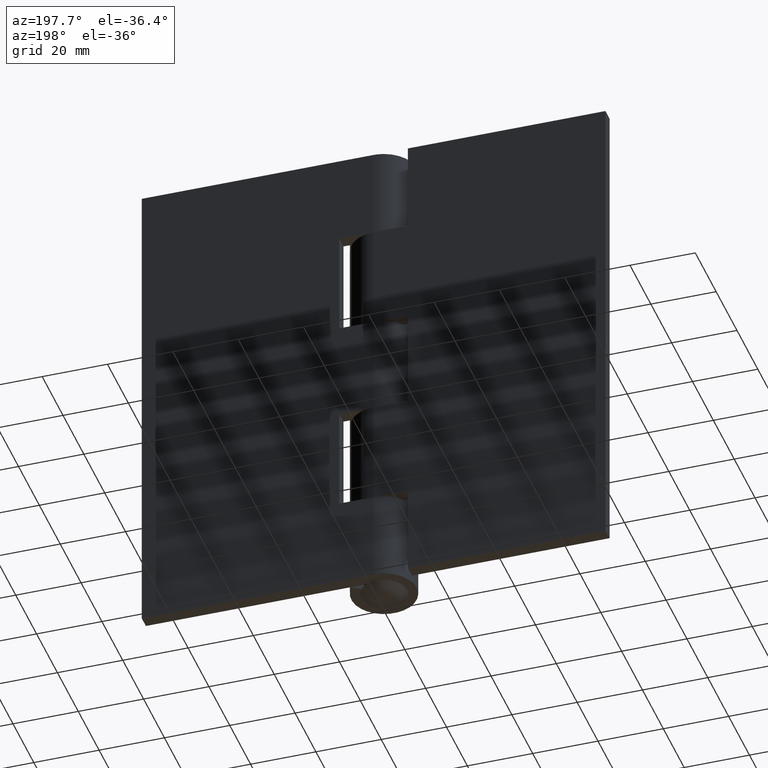
[diagram: clean part render]
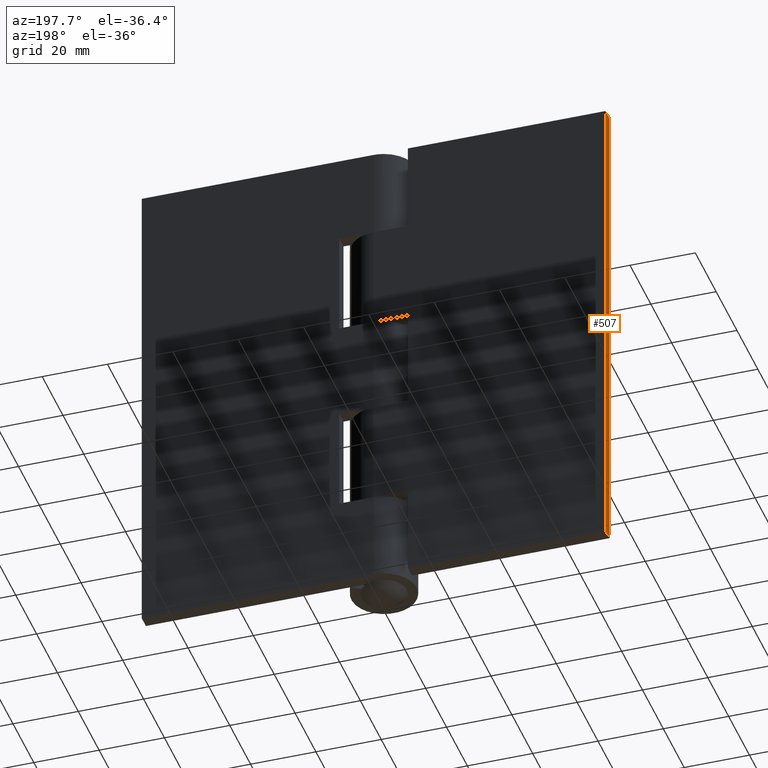
[diagram: same view with one face highlighted and labeled with its STEP entity id]
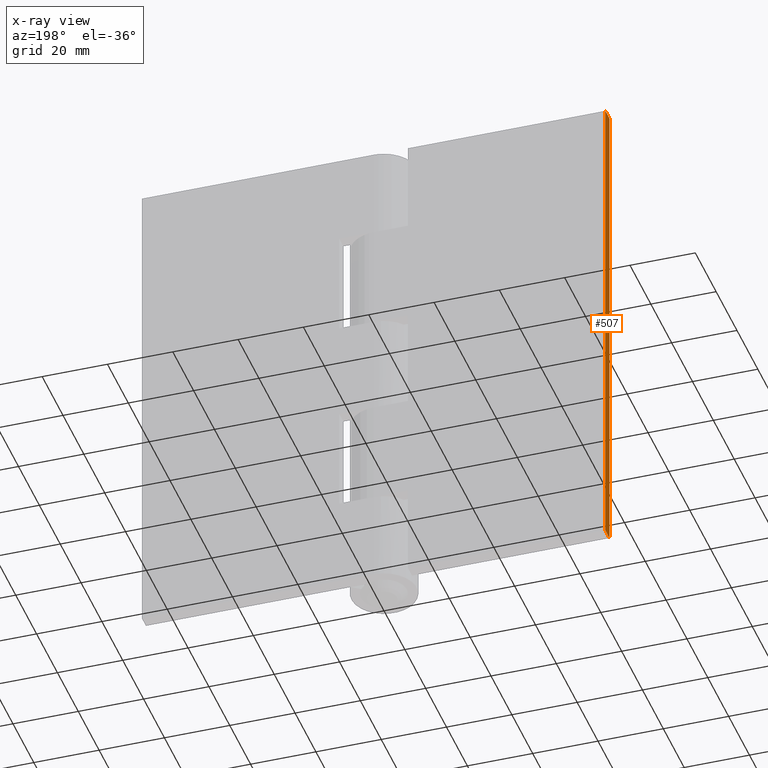
[diagram: x-ray of the same camera — body ghosted, the highlighted face saturated]
A machine part, auxiliary view. The second image highlights one B-rep face of the part: STEP entity #507.
The next image is the same camera in x-ray: the body ghosted, the highlighted face saturated — about 0% of this face is hidden behind the body in this view.
In plain terms, the highlighted face is a freeform B-spline surface patch.
Its self-contained STEP definition (entity closure, byte-faithful):
#438=CARTESIAN_POINT('',(-71.0,6.0,0.0));
#439=VERTEX_POINT('',#438);
#445=CARTESIAN_POINT('',(-71.0,10.0,0.0));
#446=VERTEX_POINT('',#445);
#447=CARTESIAN_POINT('',(-71.0,10.0,0.0));
#448=CARTESIAN_POINT('',(-71.0,6.0,0.0));
#449=QUASI_UNIFORM_CURVE('',1,(#447,#448),.UNSPECIFIED.,.F.,.U.);
#450=EDGE_CURVE('',#446,#439,#449,.T.);
#465=CARTESIAN_POINT('',(-71.0,6.0,151.999985000000010));
#466=VERTEX_POINT('',#465);
#473=CARTESIAN_POINT('',(-71.0,10.0,151.999985000000010));
#474=VERTEX_POINT('',#473);
#480=CARTESIAN_POINT('',(-71.0,10.0,151.999985000000010));
#481=CARTESIAN_POINT('',(-71.0,6.0,151.999985000000010));
#482=QUASI_UNIFORM_CURVE('',1,(#480,#481),.UNSPECIFIED.,.F.,.U.);
#483=EDGE_CURVE('',#474,#466,#482,.T.);
#488=CARTESIAN_POINT('',(-71.0,5.800200007752776,159.592383956144490));
#489=CARTESIAN_POINT('',(-71.0,5.800200007752776,-7.592403033101828));
#490=CARTESIAN_POINT('',(-71.0,10.199800099535590,159.592383956144490));
#491=CARTESIAN_POINT('',(-71.0,10.199800099535590,-7.592403033101828));
#492=B_SPLINE_SURFACE_WITH_KNOTS('',1,1,((#488,#490),(#489,#491)),.UNSPECIFIED.,.F.,.F.,.U.,(2,2),(2,2),(0.0,167.184786989246390),(0.0,4.399600091782808),.UNSPECIFIED.);
#493=ORIENTED_EDGE('',*,*,#450,.T.);
#494=CARTESIAN_POINT('',(-71.0,6.0,151.999985000000010));
#495=CARTESIAN_POINT('',(-71.0,6.0,0.0));
#496=QUASI_UNIFORM_CURVE('',1,(#494,#495),.UNSPECIFIED.,.F.,.U.);
#497=EDGE_CURVE('',#466,#439,#496,.T.);
#498=ORIENTED_EDGE('',*,*,#497,.F.);
#499=ORIENTED_EDGE('',*,*,#483,.F.);
#500=CARTESIAN_POINT('',(-71.0,10.0,151.999985000000010));
#501=CARTESIAN_POINT('',(-71.0,10.0,0.0));
#502=QUASI_UNIFORM_CURVE('',1,(#500,#501),.UNSPECIFIED.,.F.,.U.);
#503=EDGE_CURVE('',#474,#446,#502,.T.);
#504=ORIENTED_EDGE('',*,*,#503,.T.);
#505=EDGE_LOOP('',(#493,#498,#499,#504));
#506=FACE_OUTER_BOUND('',#505,.T.);
#507=ADVANCED_FACE('',(#506),#492,.F.);